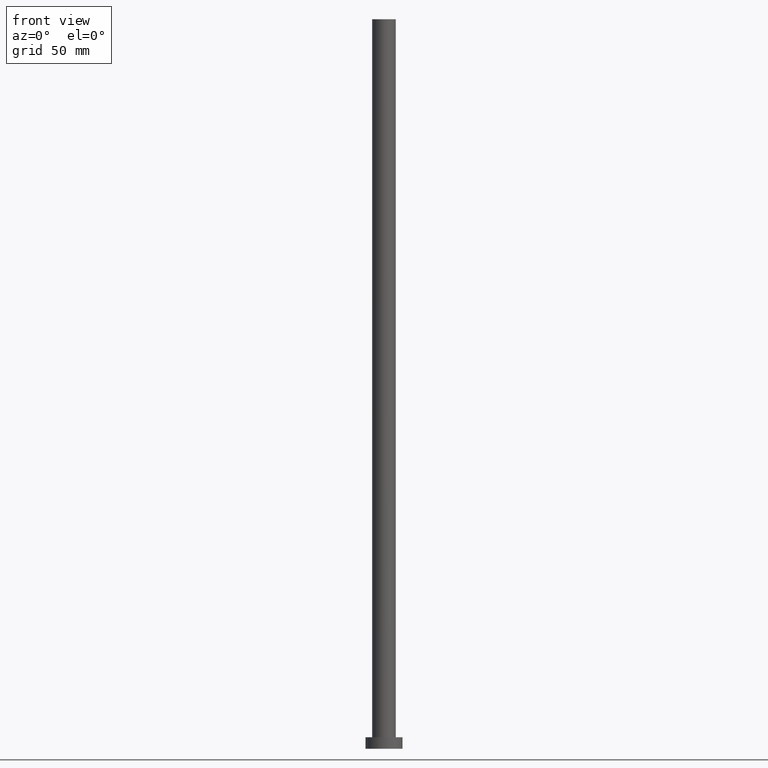
[diagram: clean part render]
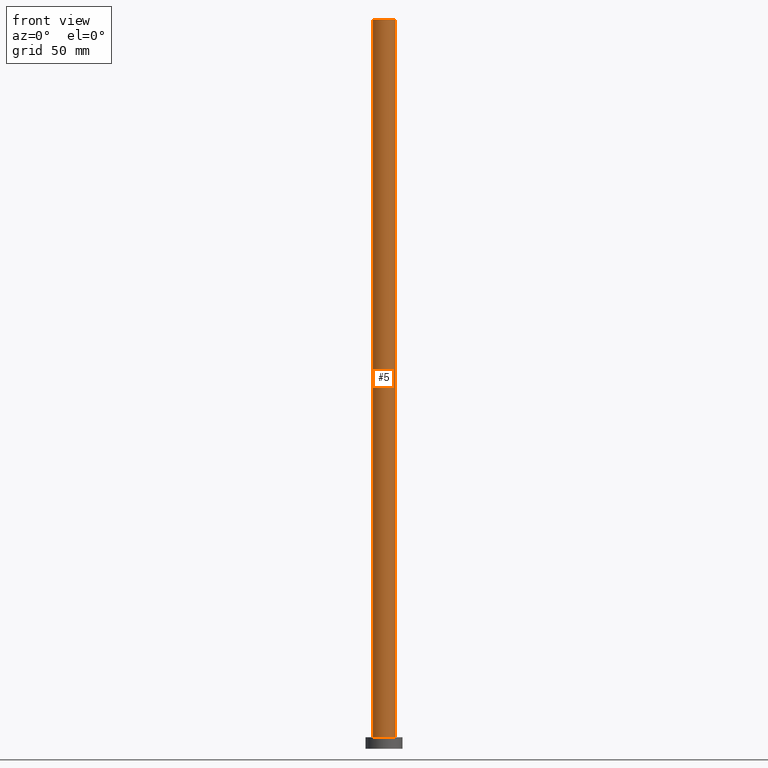
[diagram: same view with one face highlighted and labeled with its STEP entity id]
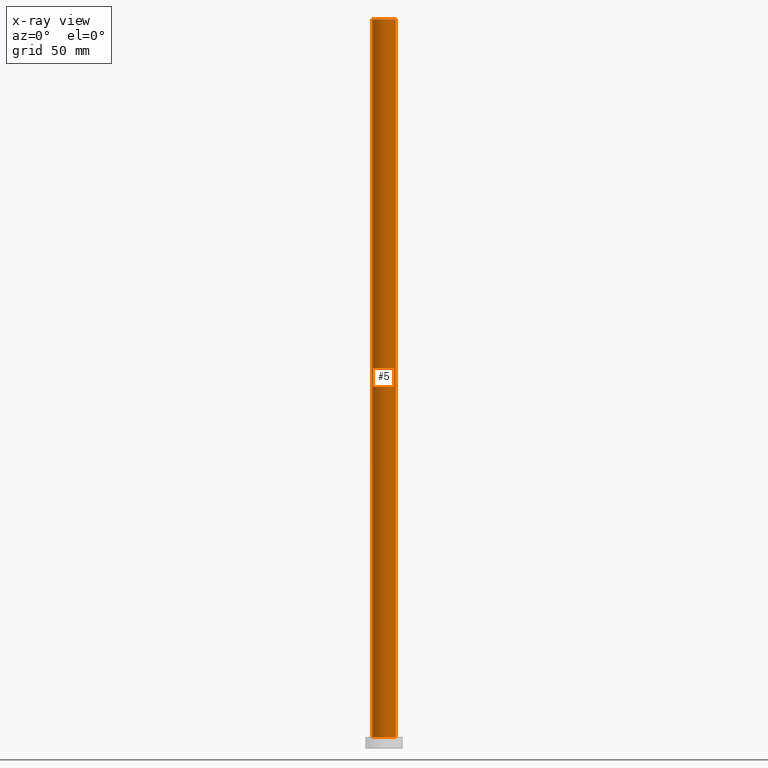
[diagram: x-ray of the same camera — body ghosted, the highlighted face saturated]
A machine part, front view. The second image highlights one B-rep face of the part: STEP entity #5.
The next image is the same camera in x-ray: the body ghosted, the highlighted face saturated — about 0% of this face is hidden behind the body in this view.
In plain terms, the highlighted cylindrical surface (edge-blend (fillet) strip) has radius 5.1 mm, axis along (-0, -0, -1).
Its self-contained STEP definition (entity closure, byte-faithful):
#1 = DIRECTION ( 'NONE',  ( -1.000000000000000000, 0.000000000000000000, 0.000000000000000000 ) ) ;
#3 = LINE ( 'NONE', #246, #227 ) ;
#5 = ADVANCED_FACE ( 'NONE', ( #140 ), #208, .T. ) ;
#7 = LINE ( 'NONE', #194, #36 ) ;
#28 = ORIENTED_EDGE ( 'NONE', *, *, #175, .F. ) ;
#30 = VERTEX_POINT ( 'NONE', #145 ) ;
#36 = VECTOR ( 'NONE', #109, 1000.000000000000000 ) ;
#42 = CIRCLE ( 'NONE', #54, 5.100000000000001421 ) ;
#43 = CARTESIAN_POINT ( 'NONE',  ( 0.000000000000000000, 0.000000000000000000, 315.0000000000000000 ) ) ;
#51 = VERTEX_POINT ( 'NONE', #163 ) ;
#54 = AXIS2_PLACEMENT_3D ( 'NONE', #249, #171, #173 ) ;
#70 = VERTEX_POINT ( 'NONE', #167 ) ;
#80 = AXIS2_PLACEMENT_3D ( 'NONE', #99, #209, #214 ) ;
#83 = CARTESIAN_POINT ( 'NONE',  ( 5.100000000000001421, 6.245698675651502811E-16, 315.0000000000000000 ) ) ;
#92 = VERTEX_POINT ( 'NONE', #83 ) ;
#99 = CARTESIAN_POINT ( 'NONE',  ( 0.000000000000000000, 0.000000000000000000, 315.0000000000000000 ) ) ;
#109 = DIRECTION ( 'NONE',  ( -0.000000000000000000, -0.000000000000000000, -1.000000000000000000 ) ) ;
#114 = ORIENTED_EDGE ( 'NONE', *, *, #179, .F. ) ;
#135 = ORIENTED_EDGE ( 'NONE', *, *, #254, .T. ) ;
#140 = FACE_OUTER_BOUND ( 'NONE', #245, .T. ) ;
#145 = CARTESIAN_POINT ( 'NONE',  ( 5.100000000000001421, 6.245698675651502811E-16, 5.000000000000000000 ) ) ;
#149 = AXIS2_PLACEMENT_3D ( 'NONE', #43, #223, #1 ) ;
#163 = CARTESIAN_POINT ( 'NONE',  ( -5.100000000000001421, 0.000000000000000000, 5.000000000000000000 ) ) ;
#167 = CARTESIAN_POINT ( 'NONE',  ( -5.100000000000001421, 0.000000000000000000, 315.0000000000000000 ) ) ;
#171 = DIRECTION ( 'NONE',  ( 0.000000000000000000, 0.000000000000000000, 1.000000000000000000 ) ) ;
#173 = DIRECTION ( 'NONE',  ( 1.000000000000000000, 0.000000000000000000, 0.000000000000000000 ) ) ;
#175 = EDGE_CURVE ( 'NONE', #92, #30, #3, .T. ) ;
#179 = EDGE_CURVE ( 'NONE', #70, #92, #232, .T. ) ;
#194 = CARTESIAN_POINT ( 'NONE',  ( -5.100000000000001421, 0.000000000000000000, 315.0000000000000000 ) ) ;
#208 = CYLINDRICAL_SURFACE ( 'NONE', #149, 5.100000000000001421 ) ;
#209 = DIRECTION ( 'NONE',  ( 0.000000000000000000, 0.000000000000000000, 1.000000000000000000 ) ) ;
#214 = DIRECTION ( 'NONE',  ( 1.000000000000000000, 0.000000000000000000, 0.000000000000000000 ) ) ;
#221 = ORIENTED_EDGE ( 'NONE', *, *, #240, .T. ) ;
#223 = DIRECTION ( 'NONE',  ( -0.000000000000000000, -0.000000000000000000, -1.000000000000000000 ) ) ;
#227 = VECTOR ( 'NONE', #228, 1000.000000000000000 ) ;
#228 = DIRECTION ( 'NONE',  ( -0.000000000000000000, -0.000000000000000000, -1.000000000000000000 ) ) ;
#232 = CIRCLE ( 'NONE', #80, 5.100000000000001421 ) ;
#240 = EDGE_CURVE ( 'NONE', #51, #30, #42, .T. ) ;
#245 = EDGE_LOOP ( 'NONE', ( #28, #114, #135, #221 ) ) ;
#246 = CARTESIAN_POINT ( 'NONE',  ( 5.100000000000001421, 6.245698675651502811E-16, 315.0000000000000000 ) ) ;
#249 = CARTESIAN_POINT ( 'NONE',  ( 0.000000000000000000, 0.000000000000000000, 5.000000000000000000 ) ) ;
#254 = EDGE_CURVE ( 'NONE', #70, #51, #7, .T. ) ;